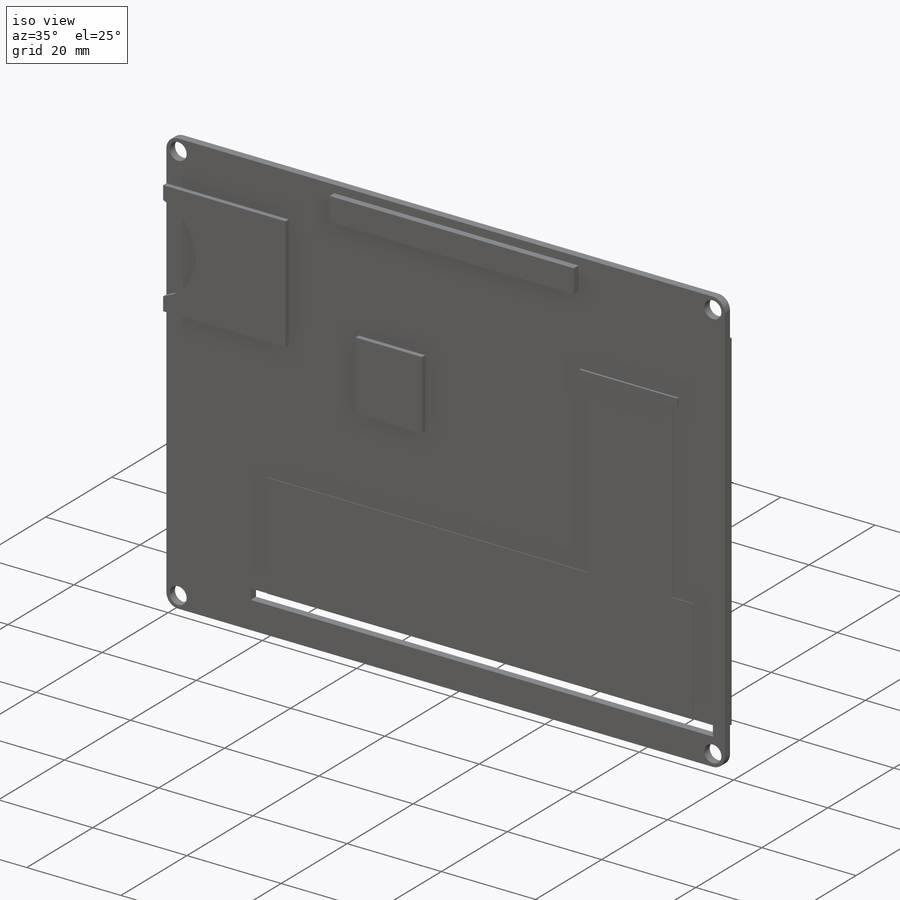
[diagram: iso view]
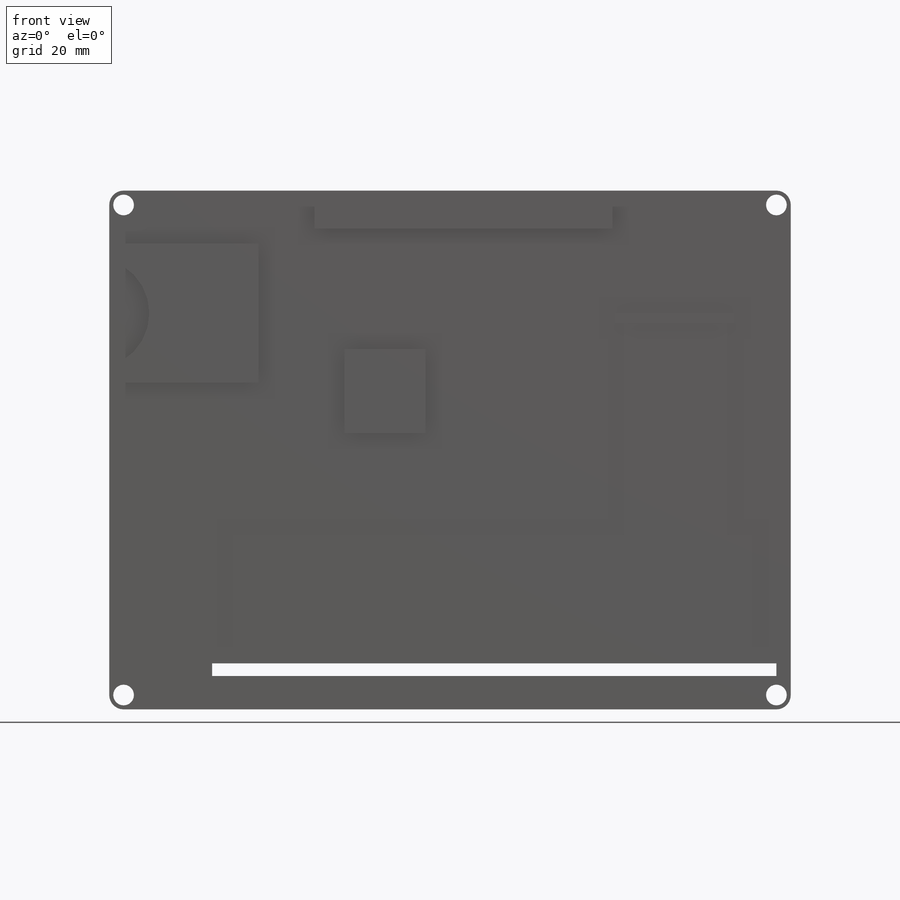
[diagram: front view]
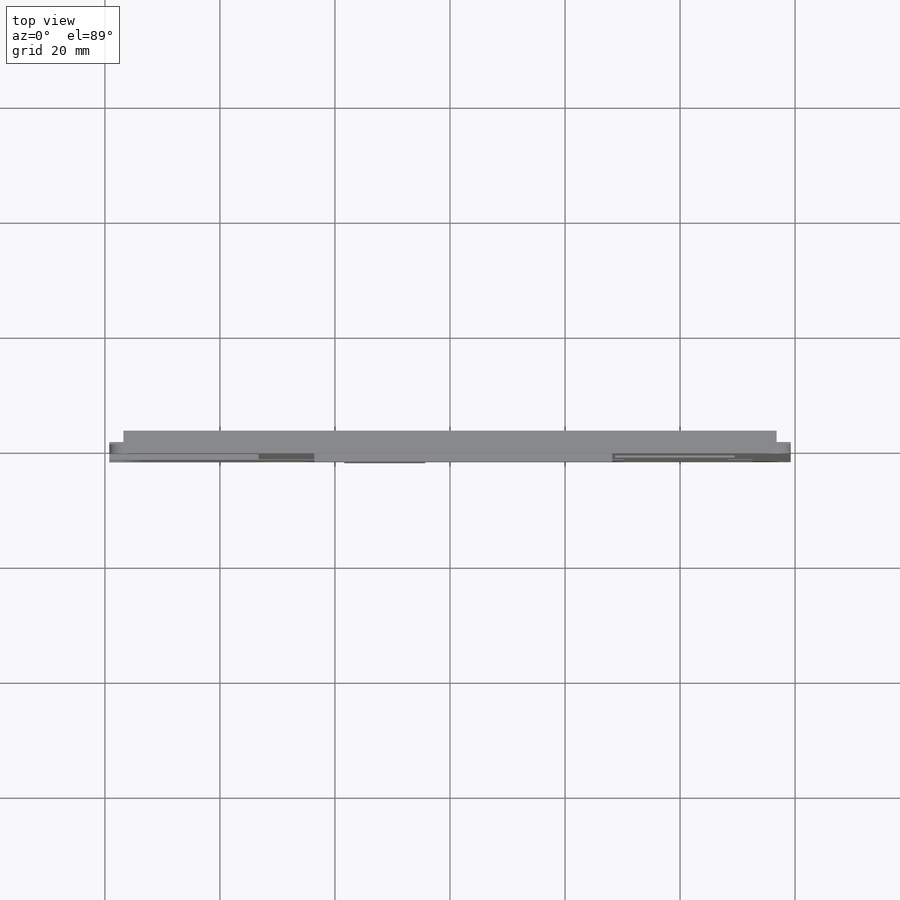
[diagram: top view]
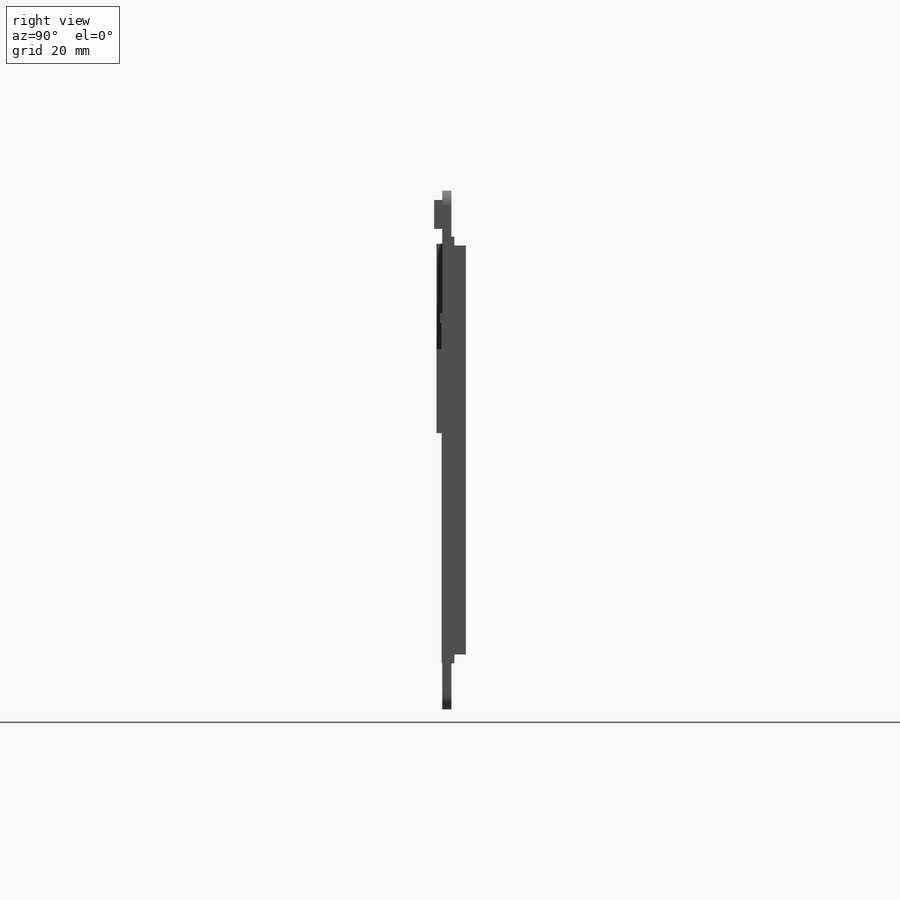
[diagram: right view]
SOLIDWORKS PART (.sldprt)
format: sldprt  version: not decoded by parser v0  size: 278,528 bytes
history: native  units: mm
features: sketch x8, extrude x7, plane x2, material x1, cut_extrude x1 (+13 scaffold rows collapsed)
feature tree (32):
  scaffold x13  (default folders/planes/origin — collapsed)
  material  "Material <not specified>"
  sketch  "Sketch1"  dims[c1.D3=2.5mm c1.D4=2.5mm c1.D5=3.6mm c1.D6=3.6mm c1.D7=3.6mm c1.D8=3.6mm c1.D1=90.2mm c1.D2=118.5mm c1.D9=17.9mm c1.D10=5.8mm c1.D11=17.9mm c2.D9=2.2mm]
  extrude  "Boss-Extrude1"  Depth=1.6mm
  plane  "Plane1"  Offset=0mm
  sketch  "Sketch2"
  extrude  "Boss-Extrude2"  Depth=1mm
  sketch  "Sketch4"
  extrude  "Boss-Extrude3"  Depth=1mm
  sketch  "Sketch5"
  extrude  "Boss-Extrude4"  Depth=2mm
  sketch  "Sketch6"  dims[D1=18.0mm]
  extrude  "Boss-Extrude5"  Depth=0.1mm
  sketch  "Sketch7"
  extrude  "Boss-Extrude6"  Depth=2.5mm
  plane  "Plane2"  Offset=0mm
  sketch  "Sketch9"
  cut_extrude  "Cut-Extrude1"  Depth=2mm
  sketch  "Sketch10"
  extrude  "Boss-Extrude7"  Depth=3mm
decode coverage: 10 of 16 modeling features carry decoded parameters
note: suppression state not decoded; provenance and decode notes live in map.json
